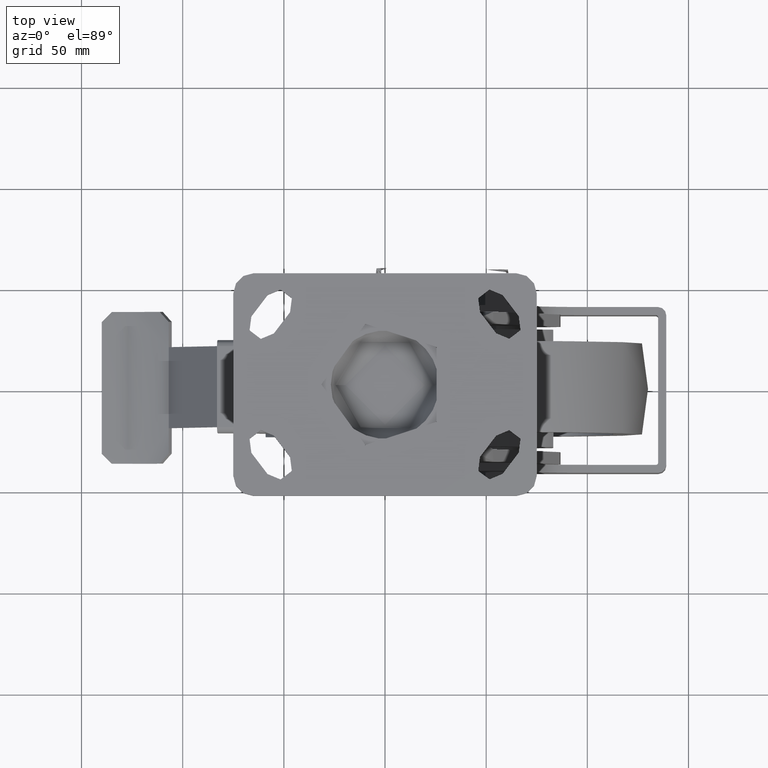
[diagram: clean part render]
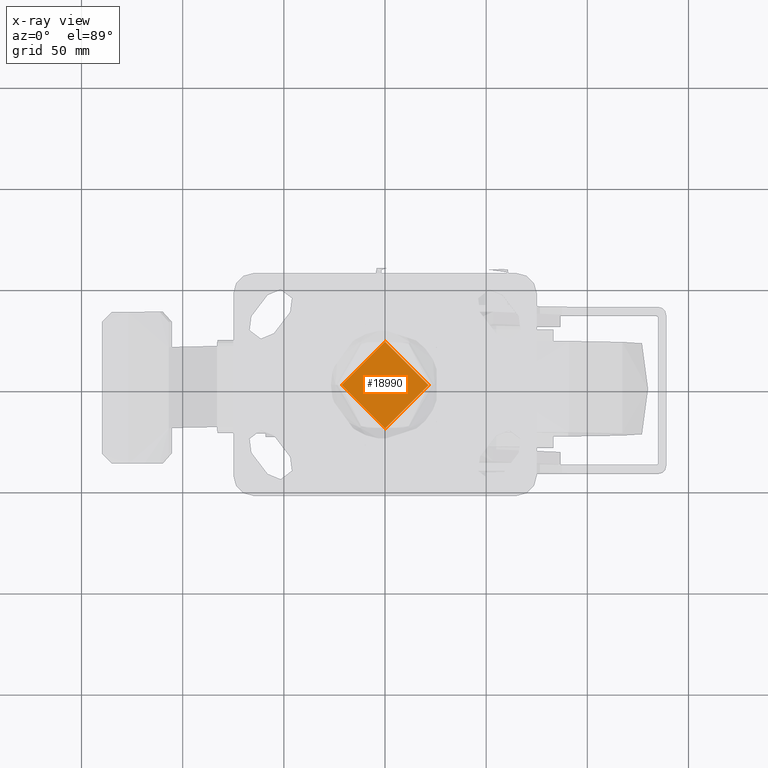
[diagram: x-ray — body ghosted, one internal face saturated and labeled with its STEP entity id]
A machine part, top view, then the same camera in x-ray: the body is ghosted and one INTERNAL B-rep face — a face not visible from any outside direction — is saturated and labeled: STEP entity #18990.
In plain terms, the highlighted planar face has unit normal (0, 0, -1).
Its self-contained STEP definition (entity closure, byte-faithful):
#1509=PLANE('',#20657);
#5527=FACE_OUTER_BOUND('',#6762,.T.);
#6762=EDGE_LOOP('',(#14922));
#7855=CIRCLE('',#20641,21.5);
#8951=VERTEX_POINT('',#31498);
#11102=EDGE_CURVE('',#8951,#8951,#7855,.T.);
#14922=ORIENTED_EDGE('',*,*,#11102,.F.);
#18990=ADVANCED_FACE('',(#5527),#1509,.T.);
#20641=AXIS2_PLACEMENT_3D('',#31499,#23340,#23341);
#20657=AXIS2_PLACEMENT_3D('',#31555,#23381,#23382);
#23340=DIRECTION('center_axis',(0.,0.,1.));
#23341=DIRECTION('ref_axis',(1.,1.22464679914735E-16,0.));
#23381=DIRECTION('center_axis',(0.,0.,-1.));
#23382=DIRECTION('ref_axis',(-1.,0.,0.));
#31498=CARTESIAN_POINT('',(21.5,2.63299061816681E-15,-20.));
#31499=CARTESIAN_POINT('Origin',(1.27080433746368E-15,0.,-20.));
#31555=CARTESIAN_POINT('Origin',(-15.75,0.,-20.));